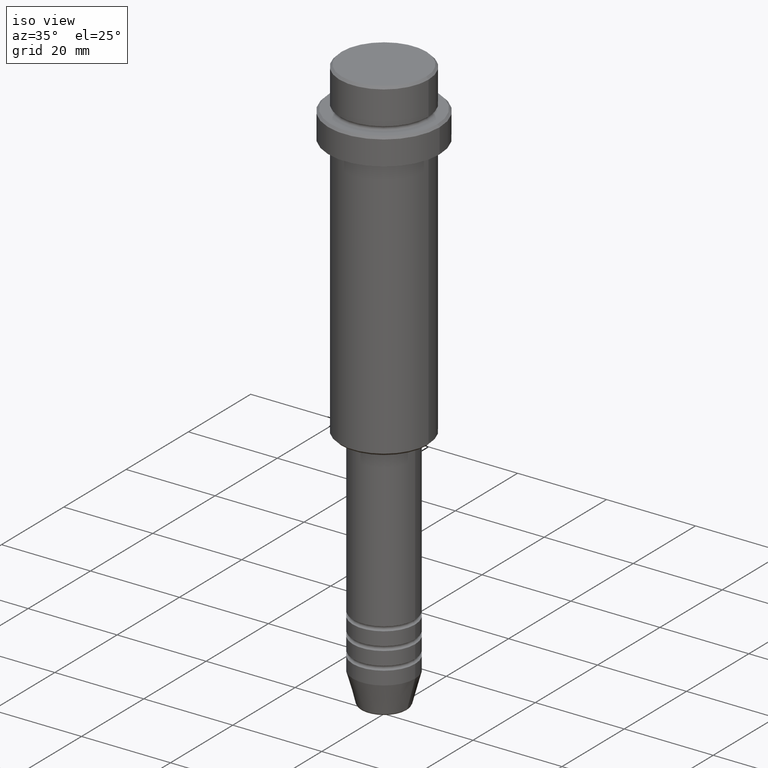
[diagram: clean part render]
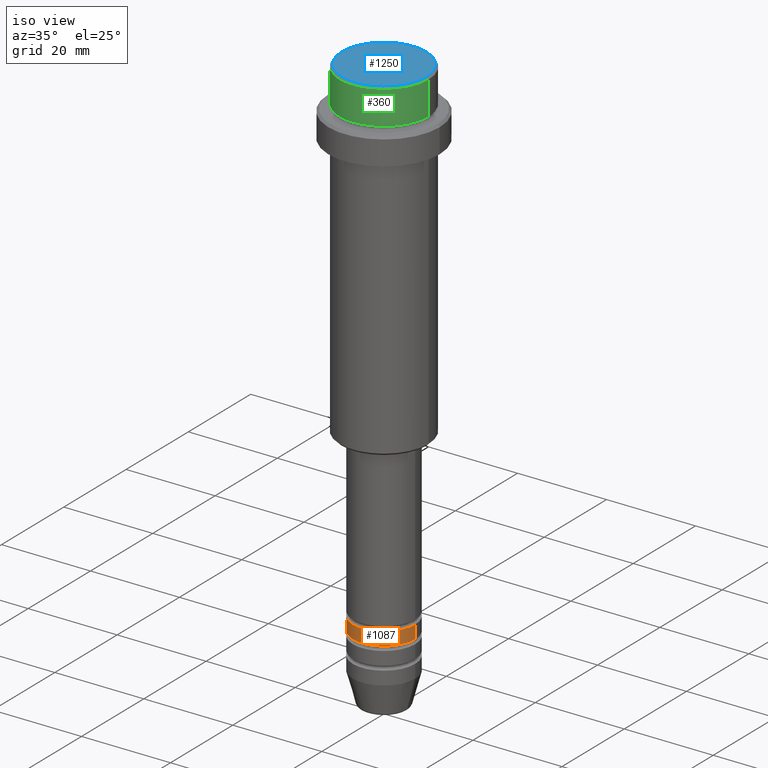
[diagram: same view with three faces highlighted in distinct colors, each labeled with its STEP entity id]
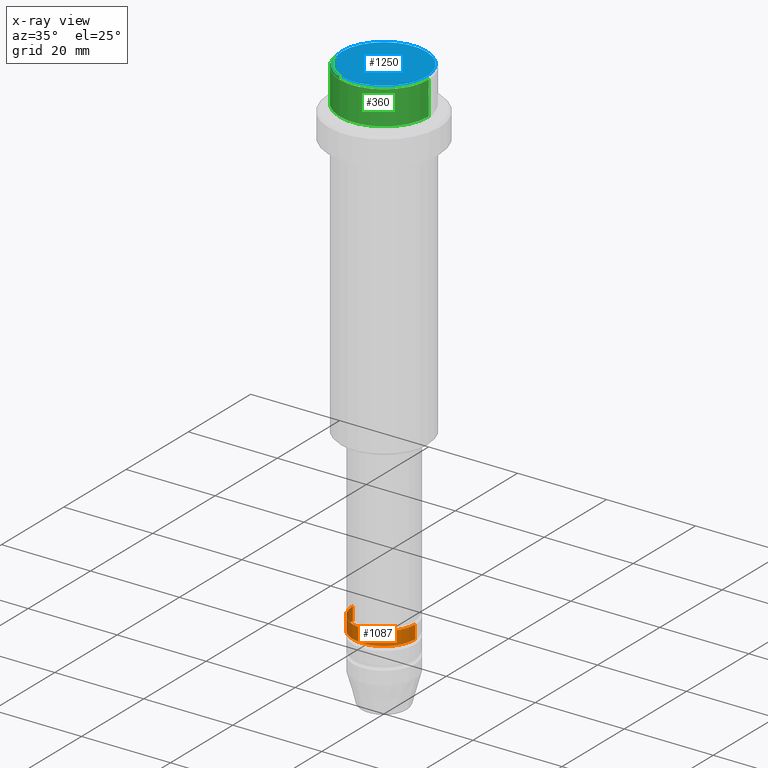
[diagram: x-ray of the same camera — body ghosted, the three highlighted faces saturated]
A machine part, iso view with three faces highlighted in distinct colors.
The next image is the same camera in x-ray (body ghosted, the three faces saturated) — at least one of them is partly hidden behind the body in this view.
Their STEP definitions:

[orange] entity #1087 — the highlighted cylindrical surface (partial cylindrical patch) has radius 7 mm, axis along (-0, -0, 1).
#56 = ORIENTED_EDGE ( 'NONE', *, *, #783, .F. ) ;
#90 = DIRECTION ( 'NONE',  ( -0.000000000000000000, -0.000000000000000000, 1.000000000000000000 ) ) ;
#100 = LINE ( 'NONE', #533, #1343 ) ;
#268 = VERTEX_POINT ( 'NONE', #392 ) ;
#287 = DIRECTION ( 'NONE',  ( -0.000000000000000000, -0.000000000000000000, 1.000000000000000000 ) ) ;
#288 = EDGE_CURVE ( 'NONE', #268, #757, #1243, .T. ) ;
#315 = ORIENTED_EDGE ( 'NONE', *, *, #288, .T. ) ;
#349 = VERTEX_POINT ( 'NONE', #851 ) ;
#392 = CARTESIAN_POINT ( 'NONE',  ( -7.000000000000000000, 8.572527594031473190E-16, -114.9999999999999005 ) ) ;
#533 = CARTESIAN_POINT ( 'NONE',  ( 7.000000000000000000, 0.000000000000000000, 0.000000000000000000 ) ) ;
#541 = DIRECTION ( 'NONE',  ( -0.000000000000000000, -0.000000000000000000, 1.000000000000000000 ) ) ;
#587 = EDGE_CURVE ( 'NONE', #268, #349, #1118, .T. ) ;
#628 = AXIS2_PLACEMENT_3D ( 'NONE', #845, #90, #1399 ) ;
#635 = DIRECTION ( 'NONE',  ( -0.000000000000000000, -0.000000000000000000, 1.000000000000000000 ) ) ;
#648 = VECTOR ( 'NONE', #287, 1000.000000000000000 ) ;
#738 = CARTESIAN_POINT ( 'NONE',  ( -7.000000000000000000, 8.572527594031473190E-16, 0.000000000000000000 ) ) ;
#757 = VERTEX_POINT ( 'NONE', #1189 ) ;
#783 = EDGE_CURVE ( 'NONE', #349, #1188, #1037, .T. ) ;
#801 = EDGE_CURVE ( 'NONE', #757, #1188, #100, .T. ) ;
#845 = CARTESIAN_POINT ( 'NONE',  ( 0.000000000000000000, 0.000000000000000000, -114.9999999999999005 ) ) ;
#851 = CARTESIAN_POINT ( 'NONE',  ( -7.000000000000000000, 8.572527594031473190E-16, -111.9999999999998863 ) ) ;
#855 = CARTESIAN_POINT ( 'NONE',  ( 0.000000000000000000, 0.000000000000000000, -111.9999999999998863 ) ) ;
#916 = CYLINDRICAL_SURFACE ( 'NONE', #1148, 7.000000000000000000 ) ;
#933 = DIRECTION ( 'NONE',  ( 1.000000000000000000, 0.000000000000000000, 0.000000000000000000 ) ) ;
#1037 = CIRCLE ( 'NONE', #1200, 7.000000000000000000 ) ;
#1087 = ADVANCED_FACE ( 'NONE', ( #1254 ), #916, .T. ) ;
#1118 = LINE ( 'NONE', #738, #648 ) ;
#1127 = CARTESIAN_POINT ( 'NONE',  ( 0.000000000000000000, 0.000000000000000000, 0.000000000000000000 ) ) ;
#1135 = DIRECTION ( 'NONE',  ( -0.000000000000000000, -0.000000000000000000, 1.000000000000000000 ) ) ;
#1140 = EDGE_LOOP ( 'NONE', ( #1394, #315, #1361, #56 ) ) ;
#1148 = AXIS2_PLACEMENT_3D ( 'NONE', #1127, #1135, #933 ) ;
#1188 = VERTEX_POINT ( 'NONE', #1288 ) ;
#1189 = CARTESIAN_POINT ( 'NONE',  ( 7.000000000000000000, 0.000000000000000000, -114.9999999999999005 ) ) ;
#1200 = AXIS2_PLACEMENT_3D ( 'NONE', #855, #635, #1397 ) ;
#1243 = CIRCLE ( 'NONE', #628, 7.000000000000000000 ) ;
#1254 = FACE_OUTER_BOUND ( 'NONE', #1140, .T. ) ;
#1288 = CARTESIAN_POINT ( 'NONE',  ( 7.000000000000000000, 0.000000000000000000, -111.9999999999998863 ) ) ;
#1343 = VECTOR ( 'NONE', #541, 1000.000000000000000 ) ;
#1361 = ORIENTED_EDGE ( 'NONE', *, *, #801, .T. ) ;
#1394 = ORIENTED_EDGE ( 'NONE', *, *, #587, .F. ) ;
#1397 = DIRECTION ( 'NONE',  ( 1.000000000000000000, 0.000000000000000000, 0.000000000000000000 ) ) ;
#1399 = DIRECTION ( 'NONE',  ( 1.000000000000000000, 0.000000000000000000, 0.000000000000000000 ) ) ;

[blue] entity #1250 — the highlighted planar face has unit normal (0, -0, 1).
#61 = ORIENTED_EDGE ( 'NONE', *, *, #1081, .T. ) ;
#92 = FACE_OUTER_BOUND ( 'NONE', #828, .T. ) ;
#403 = ORIENTED_EDGE ( 'NONE', *, *, #1286, .T. ) ;
#439 = DIRECTION ( 'NONE',  ( -0.000000000000000000, -0.000000000000000000, 1.000000000000000000 ) ) ;
#531 = DIRECTION ( 'NONE',  ( 0.000000000000000000, -0.000000000000000000, 1.000000000000000000 ) ) ;
#616 = DIRECTION ( 'NONE',  ( 1.000000000000000000, 0.000000000000000000, 0.000000000000000000 ) ) ;
#638 = CARTESIAN_POINT ( 'NONE',  ( 0.000000000000000000, 0.000000000000000000, 0.000000000000000000 ) ) ;
#650 = DIRECTION ( 'NONE',  ( 1.000000000000000000, 0.000000000000000000, 0.000000000000000000 ) ) ;
#652 = AXIS2_PLACEMENT_3D ( 'NONE', #964, #531, #650 ) ;
#663 = AXIS2_PLACEMENT_3D ( 'NONE', #721, #1049, #616 ) ;
#721 = CARTESIAN_POINT ( 'NONE',  ( 0.000000000000000000, 0.000000000000000000, 0.000000000000000000 ) ) ;
#782 = CIRCLE ( 'NONE', #663, 9.500000000000008882 ) ;
#828 = EDGE_LOOP ( 'NONE', ( #403, #61 ) ) ;
#848 = VERTEX_POINT ( 'NONE', #1086 ) ;
#861 = DIRECTION ( 'NONE',  ( 1.000000000000000000, 0.000000000000000000, 0.000000000000000000 ) ) ;
#964 = CARTESIAN_POINT ( 'NONE',  ( 0.000000000000000000, 0.000000000000000000, 0.000000000000000000 ) ) ;
#1049 = DIRECTION ( 'NONE',  ( -0.000000000000000000, -0.000000000000000000, 1.000000000000000000 ) ) ;
#1075 = PLANE ( 'NONE',  #652 ) ;
#1076 = VERTEX_POINT ( 'NONE', #1368 ) ;
#1081 = EDGE_CURVE ( 'NONE', #1076, #848, #782, .T. ) ;
#1086 = CARTESIAN_POINT ( 'NONE',  ( -9.500000000000008882, 0.000000000000000000, 0.000000000000000000 ) ) ;
#1220 = CIRCLE ( 'NONE', #1294, 9.500000000000008882 ) ;
#1250 = ADVANCED_FACE ( 'NONE', ( #92 ), #1075, .T. ) ;
#1286 = EDGE_CURVE ( 'NONE', #848, #1076, #1220, .T. ) ;
#1294 = AXIS2_PLACEMENT_3D ( 'NONE', #638, #439, #861 ) ;
#1368 = CARTESIAN_POINT ( 'NONE',  ( 9.500000000000008882, 1.194030629168669864E-15, 0.000000000000000000 ) ) ;

[green] entity #360 — the highlighted cylindrical surface (partial cylindrical patch) has radius 10 mm, axis along (-0, -0, 1).
#51 = ORIENTED_EDGE ( 'NONE', *, *, #835, .T. ) ;
#174 = DIRECTION ( 'NONE',  ( -0.000000000000000000, -0.000000000000000000, 1.000000000000000000 ) ) ;
#184 = DIRECTION ( 'NONE',  ( -0.000000000000000000, -0.000000000000000000, 1.000000000000000000 ) ) ;
#219 = CARTESIAN_POINT ( 'NONE',  ( -9.999999999999998224, 1.224646799147353059E-15, -0.4999999999999831246 ) ) ;
#237 = DIRECTION ( 'NONE',  ( 0.000000000000000000, 0.000000000000000000, -1.000000000000000000 ) ) ;
#280 = AXIS2_PLACEMENT_3D ( 'NONE', #754, #184, #504 ) ;
#301 = EDGE_CURVE ( 'NONE', #370, #532, #950, .T. ) ;
#303 = ORIENTED_EDGE ( 'NONE', *, *, #301, .F. ) ;
#322 = LINE ( 'NONE', #763, #678 ) ;
#360 = ADVANCED_FACE ( 'NONE', ( #409 ), #1297, .T. ) ;
#370 = VERTEX_POINT ( 'NONE', #1184 ) ;
#409 = FACE_OUTER_BOUND ( 'NONE', #833, .T. ) ;
#504 = DIRECTION ( 'NONE',  ( 1.000000000000000000, 0.000000000000000000, 0.000000000000000000 ) ) ;
#505 = EDGE_CURVE ( 'NONE', #631, #532, #878, .T. ) ;
#511 = CARTESIAN_POINT ( 'NONE',  ( -9.999999999999998224, 1.224646799147353059E-15, 0.000000000000000000 ) ) ;
#532 = VERTEX_POINT ( 'NONE', #219 ) ;
#631 = VERTEX_POINT ( 'NONE', #688 ) ;
#678 = VECTOR ( 'NONE', #875, 1000.000000000000000 ) ;
#681 = DIRECTION ( 'NONE',  ( 1.000000000000000000, 0.000000000000000000, 0.000000000000000000 ) ) ;
#688 = CARTESIAN_POINT ( 'NONE',  ( 9.999999999999998224, 0.000000000000000000, -0.4999999999999831246 ) ) ;
#754 = CARTESIAN_POINT ( 'NONE',  ( 0.000000000000000000, 0.000000000000000000, 0.000000000000000000 ) ) ;
#755 = ORIENTED_EDGE ( 'NONE', *, *, #505, .T. ) ;
#763 = CARTESIAN_POINT ( 'NONE',  ( 9.999999999999998224, 0.000000000000000000, 0.000000000000000000 ) ) ;
#821 = DIRECTION ( 'NONE',  ( 1.000000000000000000, 0.000000000000000000, 0.000000000000000000 ) ) ;
#827 = CARTESIAN_POINT ( 'NONE',  ( 0.000000000000000000, 0.000000000000000000, -7.999999999999998224 ) ) ;
#833 = EDGE_LOOP ( 'NONE', ( #303, #1367, #51, #755 ) ) ;
#835 = EDGE_CURVE ( 'NONE', #951, #631, #322, .T. ) ;
#875 = DIRECTION ( 'NONE',  ( -0.000000000000000000, -0.000000000000000000, 1.000000000000000000 ) ) ;
#878 = CIRCLE ( 'NONE', #1057, 9.999999999999998224 ) ;
#950 = LINE ( 'NONE', #511, #1078 ) ;
#951 = VERTEX_POINT ( 'NONE', #1349 ) ;
#997 = CARTESIAN_POINT ( 'NONE',  ( 0.000000000000000000, 0.000000000000000000, -0.4999999999999831246 ) ) ;
#1052 = DIRECTION ( 'NONE',  ( -0.000000000000000000, -0.000000000000000000, 1.000000000000000000 ) ) ;
#1057 = AXIS2_PLACEMENT_3D ( 'NONE', #997, #237, #681 ) ;
#1066 = EDGE_CURVE ( 'NONE', #370, #951, #1185, .T. ) ;
#1078 = VECTOR ( 'NONE', #1052, 1000.000000000000000 ) ;
#1137 = AXIS2_PLACEMENT_3D ( 'NONE', #827, #174, #821 ) ;
#1184 = CARTESIAN_POINT ( 'NONE',  ( -9.999999999999998224, 1.224646799147353059E-15, -7.999999999999998224 ) ) ;
#1185 = CIRCLE ( 'NONE', #1137, 9.999999999999998224 ) ;
#1297 = CYLINDRICAL_SURFACE ( 'NONE', #280, 9.999999999999998224 ) ;
#1349 = CARTESIAN_POINT ( 'NONE',  ( 9.999999999999998224, 0.000000000000000000, -7.999999999999998224 ) ) ;
#1367 = ORIENTED_EDGE ( 'NONE', *, *, #1066, .T. ) ;